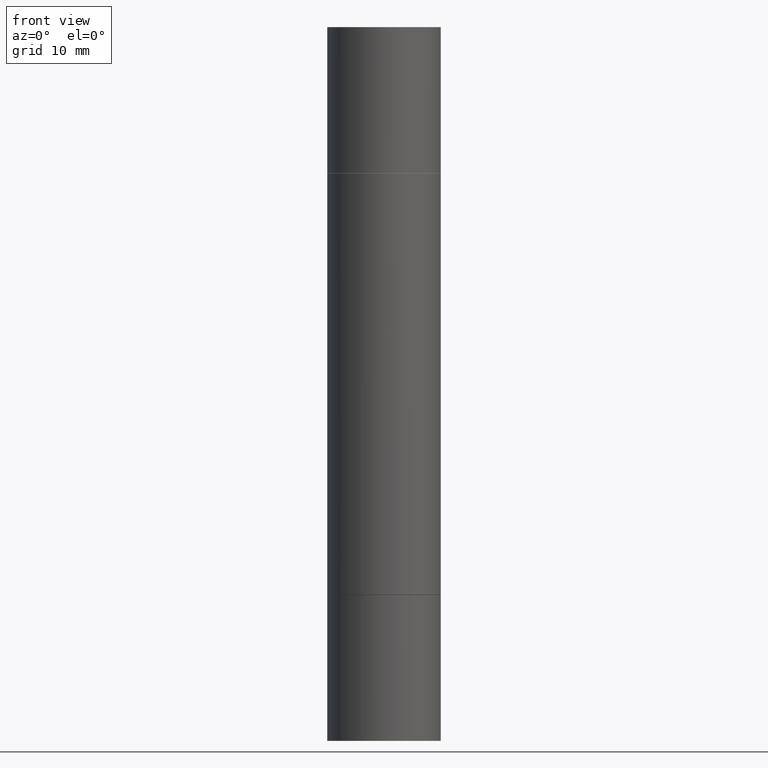
[diagram: clean part render]
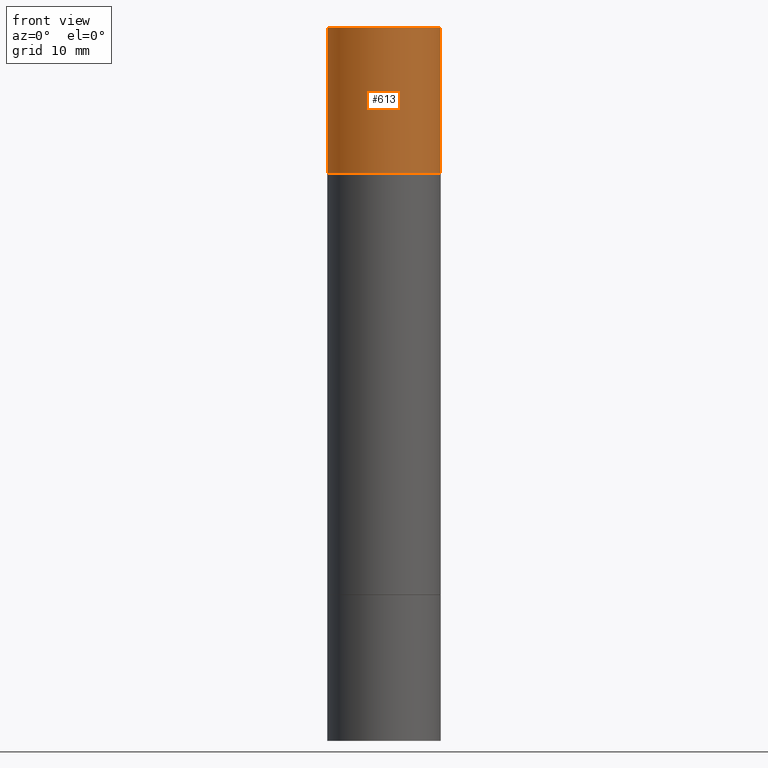
[diagram: same view with one face highlighted and labeled with its STEP entity id]
A machine part, front view. The second image highlights one B-rep face of the part: STEP entity #613.
In plain terms, the highlighted cylindrical surface (partial cylindrical patch) has radius 5.5562 mm, axis along (-0, -0, -1).
Its self-contained STEP definition (entity closure, byte-faithful):
#10 = ORIENTED_EDGE ( 'NONE', *, *, #337, .T. ) ;
#14 = AXIS2_PLACEMENT_3D ( 'NONE', #317, #163, #428 ) ;
#41 = EDGE_CURVE ( 'NONE', #315, #543, #555, .T. ) ;
#64 = DIRECTION ( 'NONE',  ( -2.445468806185136597E-29, -3.492890411551752677E-15, -1.000000000000000000 ) ) ;
#149 = EDGE_LOOP ( 'NONE', ( #594, #10, #391, #330 ) ) ;
#162 = EDGE_CURVE ( 'NONE', #638, #315, #338, .T. ) ;
#163 = DIRECTION ( 'NONE',  ( 2.445468806185136597E-29, 3.492890411551752677E-15, 1.000000000000000000 ) ) ;
#177 = CARTESIAN_POINT ( 'NONE',  ( -0.2187500000000000000, 5.211692063408169128E-16, 5.463695987328561936E-16 ) ) ;
#185 = CARTESIAN_POINT ( 'NONE',  ( 6.725039217009124520E-29, 1.937474974335603146E-18, 5.463695987328526437E-16 ) ) ;
#202 = EDGE_CURVE ( 'NONE', #272, #543, #222, .T. ) ;
#210 = VECTOR ( 'NONE', #333, 39.37007874015748143 ) ;
#215 = CARTESIAN_POINT ( 'NONE',  ( 0.2187500000000000000, -3.488590022061618704E-15, -0.5619999999999996110 ) ) ;
#222 = CIRCLE ( 'NONE', #14, 0.2187500000000000000 ) ;
#272 = VERTEX_POINT ( 'NONE', #303 ) ;
#276 = FACE_OUTER_BOUND ( 'NONE', #149, .T. ) ;
#303 = CARTESIAN_POINT ( 'NONE',  ( -0.2187500000000000000, 5.211692063408171100E-16, -0.5619999999999996110 ) ) ;
#315 = VERTEX_POINT ( 'NONE', #326 ) ;
#317 = CARTESIAN_POINT ( 'NONE',  ( 5.350685747933077986E-29, -1.961066936317747467E-15, -0.5619999999999996110 ) ) ;
#326 = CARTESIAN_POINT ( 'NONE',  ( 0.2187500000000000000, -1.525585610769535201E-15, 5.463695987328526437E-16 ) ) ;
#330 = ORIENTED_EDGE ( 'NONE', *, *, #41, .F. ) ;
#333 = DIRECTION ( 'NONE',  ( -2.445468806185136877E-29, -3.492890411551753071E-15, -1.000000000000000000 ) ) ;
#337 = EDGE_CURVE ( 'NONE', #638, #272, #389, .T. ) ;
#338 = CIRCLE ( 'NONE', #437, 0.2187500000000000000 ) ;
#389 = LINE ( 'NONE', #647, #210 ) ;
#391 = ORIENTED_EDGE ( 'NONE', *, *, #202, .T. ) ;
#394 = DIRECTION ( 'NONE',  ( 1.000000000000000000, -6.982962677686266711E-15, 0.000000000000000000 ) ) ;
#396 = VECTOR ( 'NONE', #610, 39.37007874015748143 ) ;
#402 = DIRECTION ( 'NONE',  ( 2.445468806185136597E-29, 3.492890411551752677E-15, 1.000000000000000000 ) ) ;
#428 = DIRECTION ( 'NONE',  ( 1.000000000000000000, -6.982962677686267499E-15, 0.000000000000000000 ) ) ;
#436 = CARTESIAN_POINT ( 'NONE',  ( 0.000000000000000000, -9.603511156792982543E-15, -2.749999999999999556 ) ) ;
#437 = AXIS2_PLACEMENT_3D ( 'NONE', #185, #402, #394 ) ;
#452 = CARTESIAN_POINT ( 'NONE',  ( 0.2187500000000000000, -1.113103424253685260E-14, -2.749999999999999556 ) ) ;
#493 = DIRECTION ( 'NONE',  ( 1.000000000000000000, -6.982962677686262766E-15, 0.000000000000000000 ) ) ;
#508 = CYLINDRICAL_SURFACE ( 'NONE', #550, 0.2187500000000000000 ) ;
#543 = VERTEX_POINT ( 'NONE', #215 ) ;
#550 = AXIS2_PLACEMENT_3D ( 'NONE', #436, #64, #493 ) ;
#555 = LINE ( 'NONE', #452, #396 ) ;
#594 = ORIENTED_EDGE ( 'NONE', *, *, #162, .F. ) ;
#610 = DIRECTION ( 'NONE',  ( -2.445468806185136877E-29, -3.492890411551753071E-15, -1.000000000000000000 ) ) ;
#613 = ADVANCED_FACE ( 'NONE', ( #276 ), #508, .T. ) ;
#638 = VERTEX_POINT ( 'NONE', #177 ) ;
#647 = CARTESIAN_POINT ( 'NONE',  ( -0.2187500000000000000, -8.102777219780460014E-15, -2.749999999999999556 ) ) ;